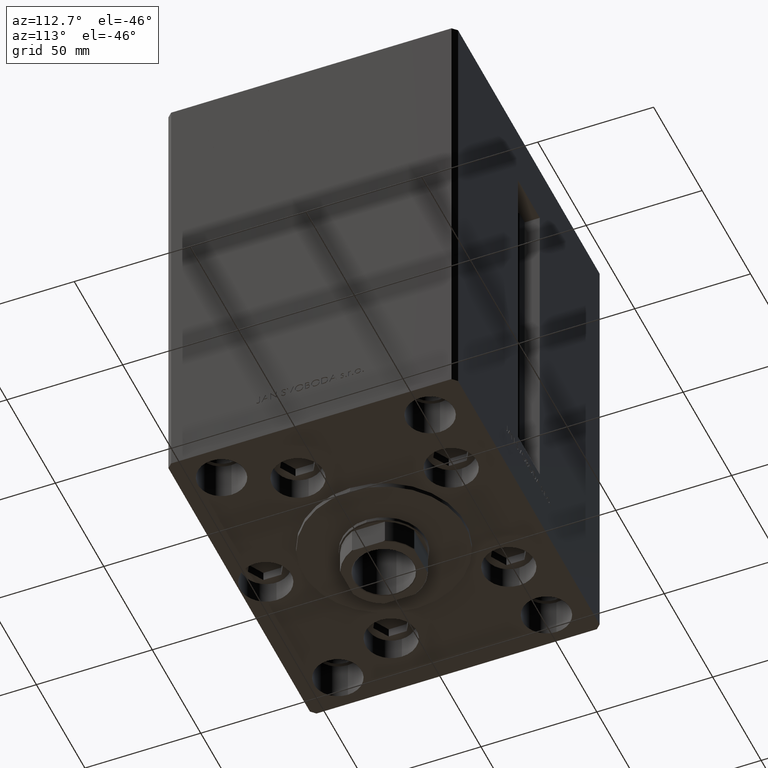
[diagram: clean part render]
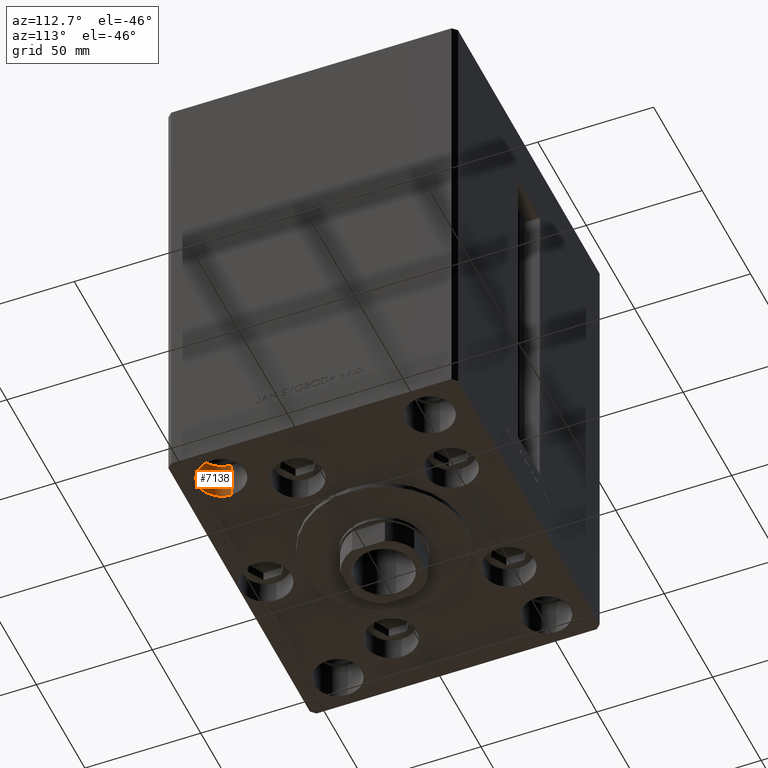
[diagram: same view with one face highlighted and labeled with its STEP entity id]
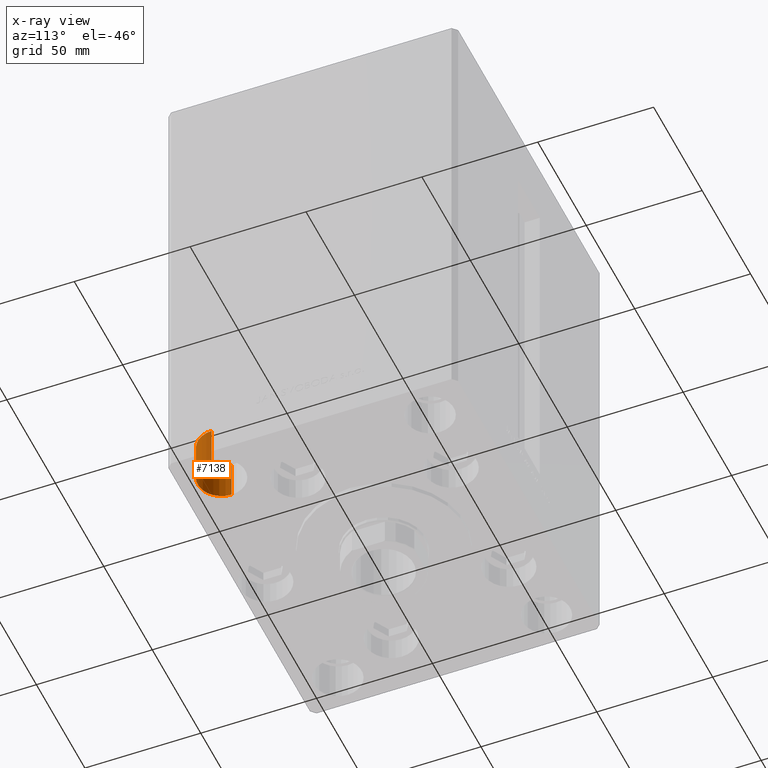
[diagram: x-ray of the same camera — body ghosted, the highlighted face saturated]
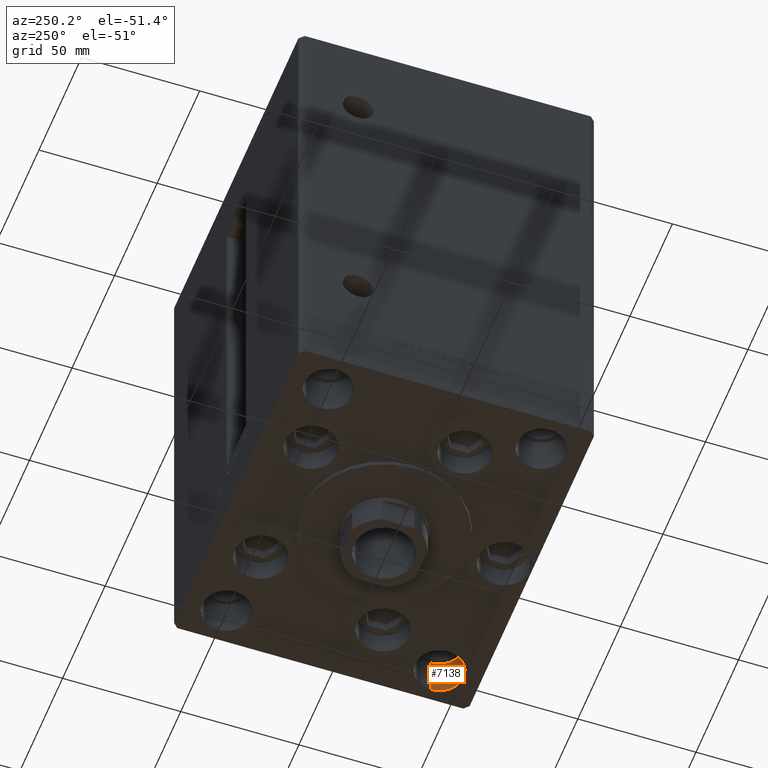
[diagram: same view with one face highlighted and labeled with its STEP entity id]
A machine part, auxiliary view. The second image highlights one B-rep face of the part: STEP entity #7138.
The next image is the same camera in x-ray: the body ghosted, the highlighted face saturated — about 0% of this face is hidden behind the body in this view.
A second angle (auxiliary view) of the same face is appended — the face is thin or edge-on in the first view.
In plain terms, the highlighted cylindrical surface (edge-blend (fillet) strip) has radius 10.25 mm, axis along (0, 0, -1).
Its self-contained STEP definition (entity closure, byte-faithful):
#522 = CARTESIAN_POINT ( 'NONE',  ( -60.00000000000000711, -45.00000000000000000, -17.00000000000000000 ) ) ;
#1141 = EDGE_LOOP ( 'NONE', ( #1563, #36458, #44209, #12818 ) ) ;
#1563 = ORIENTED_EDGE ( 'NONE', *, *, #26187, .F. ) ;
#2184 = EDGE_CURVE ( 'NONE', #10930, #30530, #16971, .T. ) ;
#4847 = DIRECTION ( 'NONE',  ( 1.000000000000000000, 0.000000000000000000, 0.000000000000000000 ) ) ;
#5389 = VECTOR ( 'NONE', #47974, 1000.000000000000000 ) ;
#7138 = ADVANCED_FACE ( 'NONE', ( #43011 ), #8665, .F. ) ;
#8665 = CYLINDRICAL_SURFACE ( 'NONE', #42931, 10.25000000000000178 ) ;
#10667 = CARTESIAN_POINT ( 'NONE',  ( -60.00000000000000711, -45.00000000000000000, -17.00000000000000000 ) ) ;
#10930 = VERTEX_POINT ( 'NONE', #14776 ) ;
#12529 = CIRCLE ( 'NONE', #44232, 10.25000000000000178 ) ;
#12818 = ORIENTED_EDGE ( 'NONE', *, *, #23120, .F. ) ;
#14776 = CARTESIAN_POINT ( 'NONE',  ( -70.25000000000000000, -45.00000000000000000, -17.00000000000000000 ) ) ;
#15374 = CARTESIAN_POINT ( 'NONE',  ( -49.75000000000000000, -45.00000000000000000, 0.000000000000000000 ) ) ;
#16040 = DIRECTION ( 'NONE',  ( -0.000000000000000000, -0.000000000000000000, 1.000000000000000000 ) ) ;
#16971 = LINE ( 'NONE', #32495, #5389 ) ;
#17672 = CARTESIAN_POINT ( 'NONE',  ( -60.00000000000000711, -45.00000000000000000, 0.000000000000000000 ) ) ;
#20768 = LINE ( 'NONE', #43909, #26130 ) ;
#21760 = DIRECTION ( 'NONE',  ( 1.000000000000000000, 0.000000000000000000, 0.000000000000000000 ) ) ;
#22126 = DIRECTION ( 'NONE',  ( 0.000000000000000000, 0.000000000000000000, 1.000000000000000000 ) ) ;
#23120 = EDGE_CURVE ( 'NONE', #27766, #40964, #20768, .T. ) ;
#23186 = EDGE_CURVE ( 'NONE', #30530, #40964, #37610, .T. ) ;
#26130 = VECTOR ( 'NONE', #41073, 1000.000000000000000 ) ;
#26187 = EDGE_CURVE ( 'NONE', #10930, #27766, #12529, .T. ) ;
#26189 = DIRECTION ( 'NONE',  ( 1.000000000000000000, 0.000000000000000000, 0.000000000000000000 ) ) ;
#26931 = AXIS2_PLACEMENT_3D ( 'NONE', #17672, #29399, #21760 ) ;
#27766 = VERTEX_POINT ( 'NONE', #42742 ) ;
#29399 = DIRECTION ( 'NONE',  ( 0.000000000000000000, 0.000000000000000000, 1.000000000000000000 ) ) ;
#30530 = VERTEX_POINT ( 'NONE', #42064 ) ;
#32495 = CARTESIAN_POINT ( 'NONE',  ( -70.25000000000000000, -45.00000000000000000, -17.00000000000000000 ) ) ;
#36458 = ORIENTED_EDGE ( 'NONE', *, *, #2184, .T. ) ;
#37610 = CIRCLE ( 'NONE', #26931, 10.25000000000000178 ) ;
#40964 = VERTEX_POINT ( 'NONE', #15374 ) ;
#41073 = DIRECTION ( 'NONE',  ( -0.000000000000000000, -0.000000000000000000, 1.000000000000000000 ) ) ;
#42064 = CARTESIAN_POINT ( 'NONE',  ( -70.25000000000000000, -45.00000000000000000, 0.000000000000000000 ) ) ;
#42742 = CARTESIAN_POINT ( 'NONE',  ( -49.75000000000000000, -45.00000000000000000, -17.00000000000000000 ) ) ;
#42931 = AXIS2_PLACEMENT_3D ( 'NONE', #522, #16040, #4847 ) ;
#43011 = FACE_OUTER_BOUND ( 'NONE', #1141, .T. ) ;
#43909 = CARTESIAN_POINT ( 'NONE',  ( -49.75000000000000000, -45.00000000000000000, -17.00000000000000000 ) ) ;
#44209 = ORIENTED_EDGE ( 'NONE', *, *, #23186, .T. ) ;
#44232 = AXIS2_PLACEMENT_3D ( 'NONE', #10667, #22126, #26189 ) ;
#47974 = DIRECTION ( 'NONE',  ( -0.000000000000000000, -0.000000000000000000, 1.000000000000000000 ) ) ;